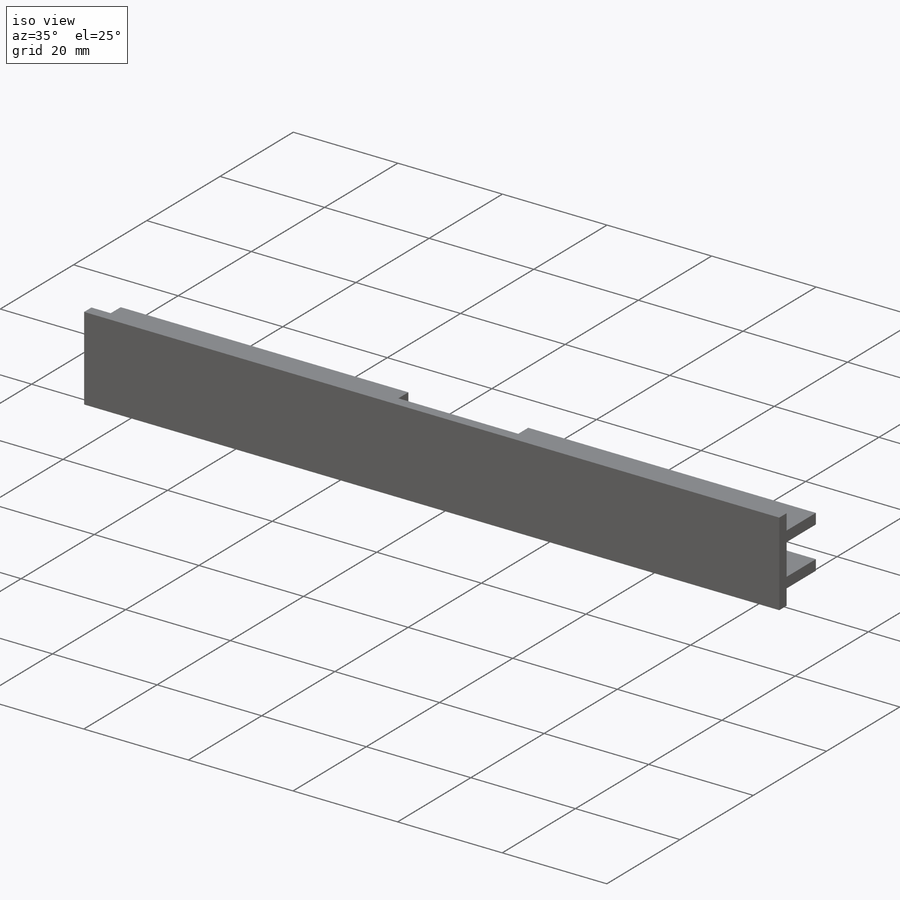
[diagram: iso view]
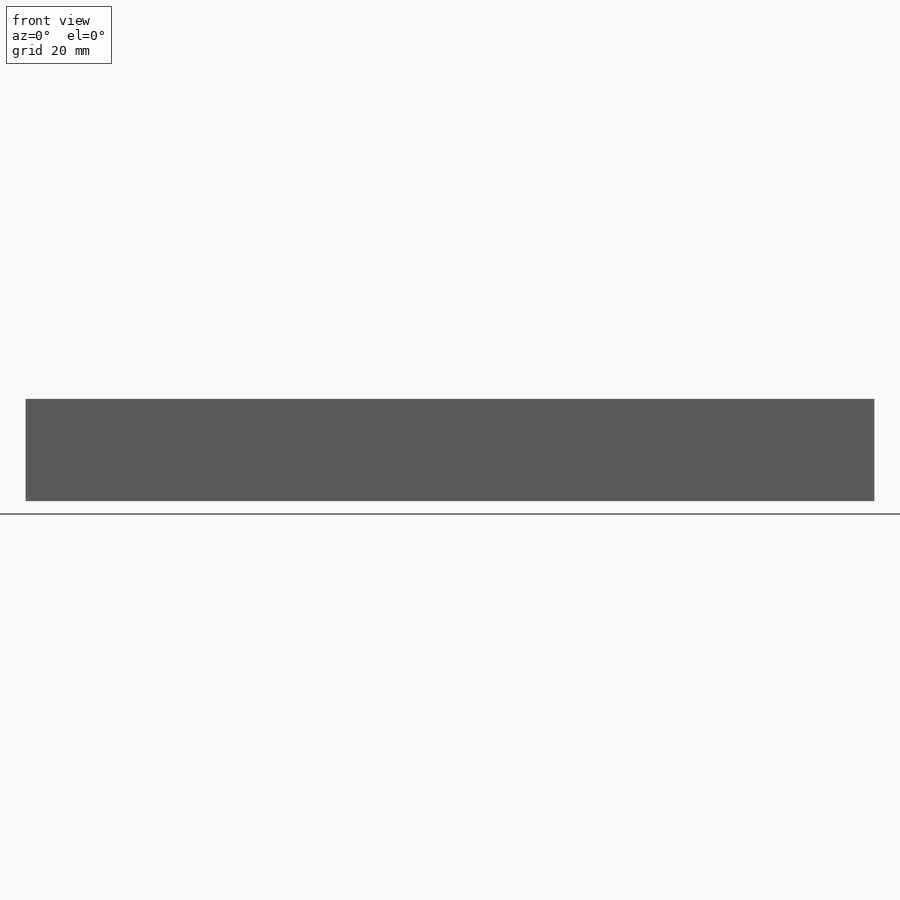
[diagram: front view]
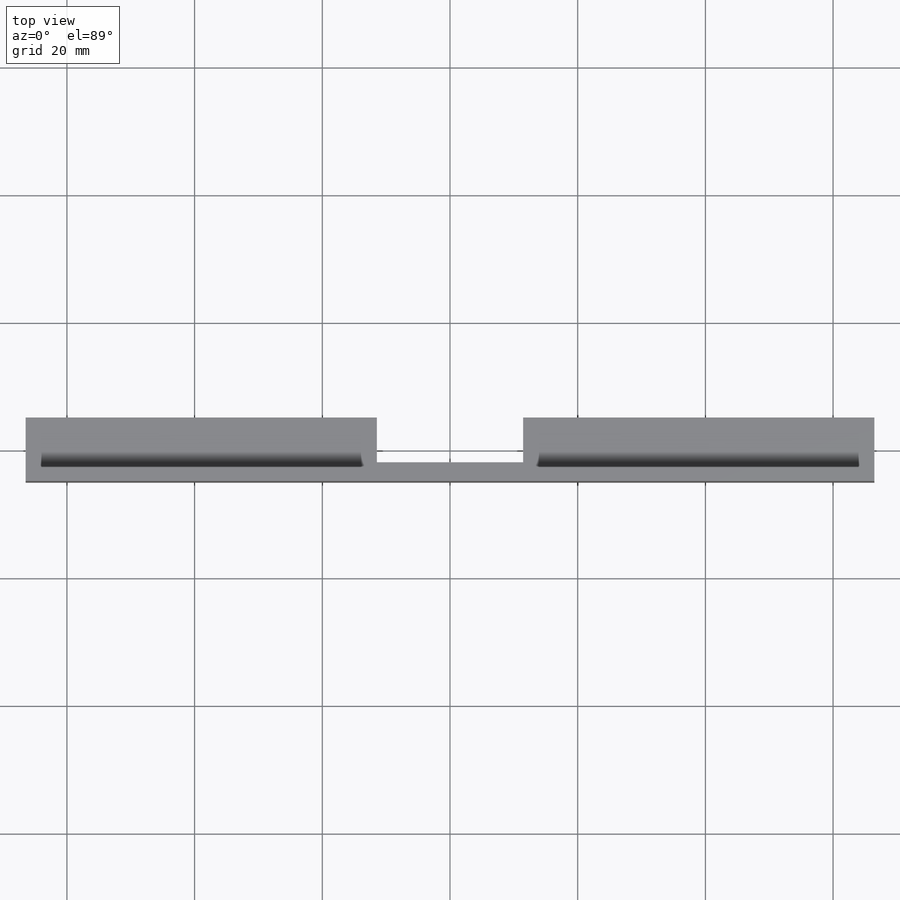
[diagram: top view]
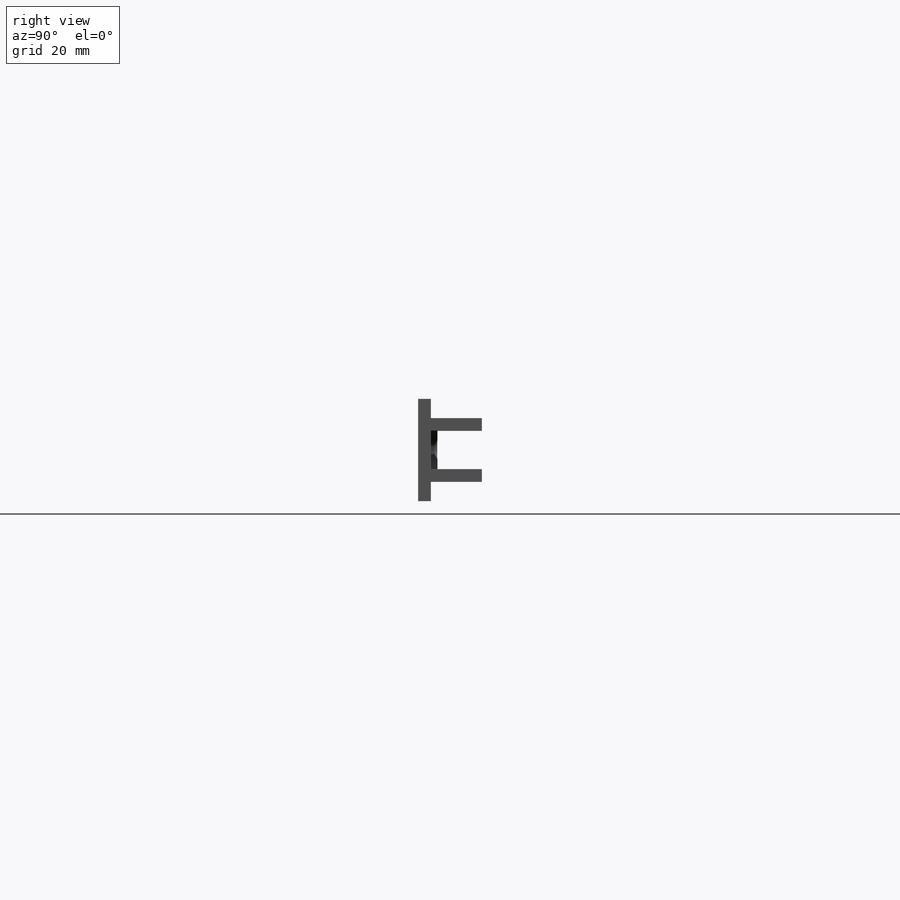
[diagram: right view]
SOLIDWORKS PART (.sldprt)
format: sldprt  version: not decoded by parser v0  size: 223,744 bytes
history: native  units: mm
features: sketch x5, cut_extrude x4, material x1, extrude x1 (+16 scaffold rows collapsed)
feature tree (27):
  scaffold x16  (default folders/planes/origin — collapsed)
  material  "Material <not specified>"
  sketch  "Sketch1"  dims[c1.D1=16.0mm c1.D2=10.0mm c1.D3=2.0mm c1.D4=2.0mm c1.D5=2.0mm c1.D6=6.0mm c1.D7=3.0mm c1.D8=7.0mm c1.D9=10.0mm c1.D10=5.0mm c2.D7=3.0mm]
  extrude  "Extrude1"  Depth=132.92mm
  sketch  "Sketch2"  dims[D1=1.0mm]
  cut_extrude  "Extrude2"  Depth=32mm
  sketch  "Sketch3"  dims[D1=1.0mm]
  cut_extrude  "Extrude3"  Depth=32mm
  sketch  "Sketch4"
  cut_extrude  "Extrude4"  [1 undecoded]
  sketch  "Sketch5"  dims[c1.D1=55.0mm c1.D2=55.0mm c2.D1=55.0mm]
  cut_extrude  "Extrude5"  [1 undecoded]
decode coverage: 7 of 10 modeling features carry decoded parameters
note: 2 parameter values undecoded
note: suppression state not decoded; provenance and decode notes live in map.json
